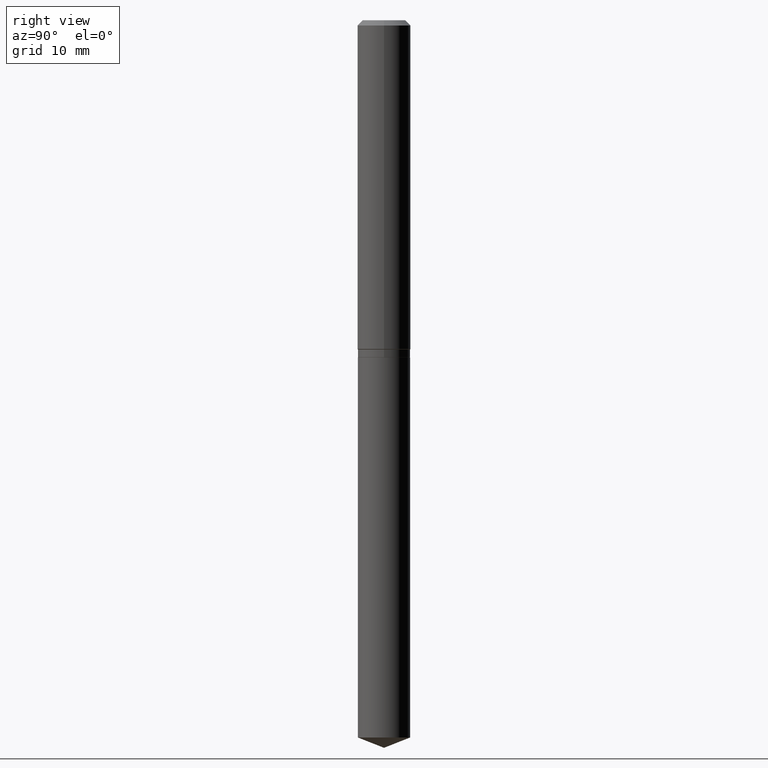
[diagram: clean part render]
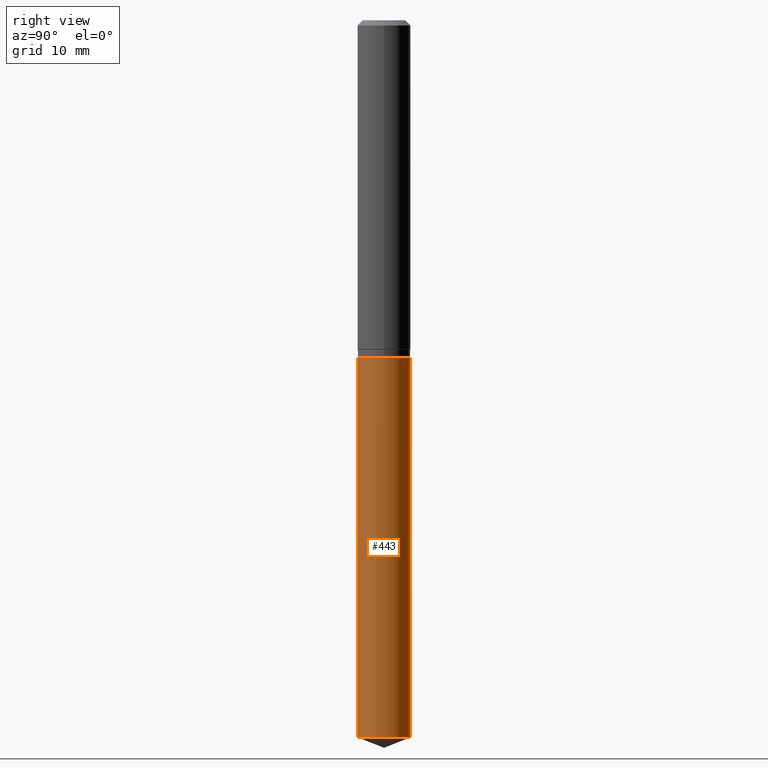
[diagram: same view with one face highlighted and labeled with its STEP entity id]
A machine part, right view. The second image highlights one B-rep face of the part: STEP entity #443.
In plain terms, the highlighted cylindrical surface (edge-blend (fillet) strip) has radius 2.9502 mm, axis along (-0, 0, 1).
Its self-contained STEP definition (entity closure, byte-faithful):
#5 = CARTESIAN_POINT ( 'NONE',  ( 8.252953875854342889E-16, 0.1161499999999947713, -1.495700000000000474 ) ) ;
#44 = CARTESIAN_POINT ( 'NONE',  ( 3.657687693411109493E-29, -5.222208638507693246E-15, -1.495700000000000029 ) ) ;
#57 = VERTEX_POINT ( 'NONE', #472 ) ;
#61 = VECTOR ( 'NONE', #261, 39.37007874015748143 ) ;
#102 = DIRECTION ( 'NONE',  ( -2.445439244954803263E-29, 3.491523672207503504E-15, 1.000000000000000000 ) ) ;
#109 = FACE_OUTER_BOUND ( 'NONE', #167, .T. ) ;
#110 = VERTEX_POINT ( 'NONE', #190 ) ;
#111 = DIRECTION ( 'NONE',  ( -6.982962677686265922E-15, -1.000000000000000000, 2.351999994545211393E-15 ) ) ;
#134 = VECTOR ( 'NONE', #222, 39.37007874015748143 ) ;
#143 = CARTESIAN_POINT ( 'NONE',  ( 7.782036645042066556E-29, -1.111082845467075413E-14, -3.182247298257325330 ) ) ;
#161 = CARTESIAN_POINT ( 'NONE',  ( -8.110711150132233597E-16, -0.1161500000000052213, -1.495699999999999807 ) ) ;
#165 = EDGE_CURVE ( 'NONE', #110, #203, #390, .T. ) ;
#167 = EDGE_LOOP ( 'NONE', ( #444, #323, #215, #200 ) ) ;
#190 = CARTESIAN_POINT ( 'NONE',  ( 8.252953875854339931E-16, 0.1161499999999888871, -3.182247298257326218 ) ) ;
#192 = DIRECTION ( 'NONE',  ( -2.445439244954803263E-29, 3.491523672207503504E-15, 1.000000000000000000 ) ) ;
#200 = ORIENTED_EDGE ( 'NONE', *, *, #389, .F. ) ;
#203 = VERTEX_POINT ( 'NONE', #5 ) ;
#211 = EDGE_CURVE ( 'NONE', #270, #203, #288, .T. ) ;
#215 = ORIENTED_EDGE ( 'NONE', *, *, #211, .F. ) ;
#222 = DIRECTION ( 'NONE',  ( -2.445439244954803543E-29, 3.491523672207503899E-15, 1.000000000000000000 ) ) ;
#226 = LINE ( 'NONE', #433, #61 ) ;
#257 = AXIS2_PLACEMENT_3D ( 'NONE', #143, #102, #334 ) ;
#261 = DIRECTION ( 'NONE',  ( -2.445439244954803543E-29, 3.491523672207503899E-15, 1.000000000000000000 ) ) ;
#263 = CYLINDRICAL_SURFACE ( 'NONE', #289, 0.1161500000000000032 ) ;
#270 = VERTEX_POINT ( 'NONE', #161 ) ;
#288 = CIRCLE ( 'NONE', #398, 0.1161500000000000032 ) ;
#289 = AXIS2_PLACEMENT_3D ( 'NONE', #44, #192, #351 ) ;
#307 = CARTESIAN_POINT ( 'NONE',  ( 8.252953875853927751E-16, 0.1161499999999947713, -1.495700000000000474 ) ) ;
#323 = ORIENTED_EDGE ( 'NONE', *, *, #165, .T. ) ;
#334 = DIRECTION ( 'NONE',  ( -6.982962677686265922E-15, -1.000000000000000000, 4.703999989090422785E-15 ) ) ;
#337 = EDGE_CURVE ( 'NONE', #57, #110, #379, .T. ) ;
#351 = DIRECTION ( 'NONE',  ( -6.982962677686265922E-15, -1.000000000000000000, 2.351999994545211393E-15 ) ) ;
#379 = CIRCLE ( 'NONE', #257, 0.1161500000000000032 ) ;
#385 = CARTESIAN_POINT ( 'NONE',  ( 3.657687693411109493E-29, -5.222208638507693246E-15, -1.495700000000000029 ) ) ;
#389 = EDGE_CURVE ( 'NONE', #57, #270, #226, .T. ) ;
#390 = LINE ( 'NONE', #307, #134 ) ;
#398 = AXIS2_PLACEMENT_3D ( 'NONE', #385, #453, #111 ) ;
#433 = CARTESIAN_POINT ( 'NONE',  ( -8.110711150132233597E-16, -0.1161500000000052213, -1.495699999999999807 ) ) ;
#443 = ADVANCED_FACE ( 'NONE', ( #109 ), #263, .T. ) ;
#444 = ORIENTED_EDGE ( 'NONE', *, *, #337, .T. ) ;
#453 = DIRECTION ( 'NONE',  ( -2.445439244954803263E-29, 3.491523672207503504E-15, 1.000000000000000000 ) ) ;
#472 = CARTESIAN_POINT ( 'NONE',  ( -8.110711150131819445E-16, -0.1161500000000111055, -3.182247298257324886 ) ) ;